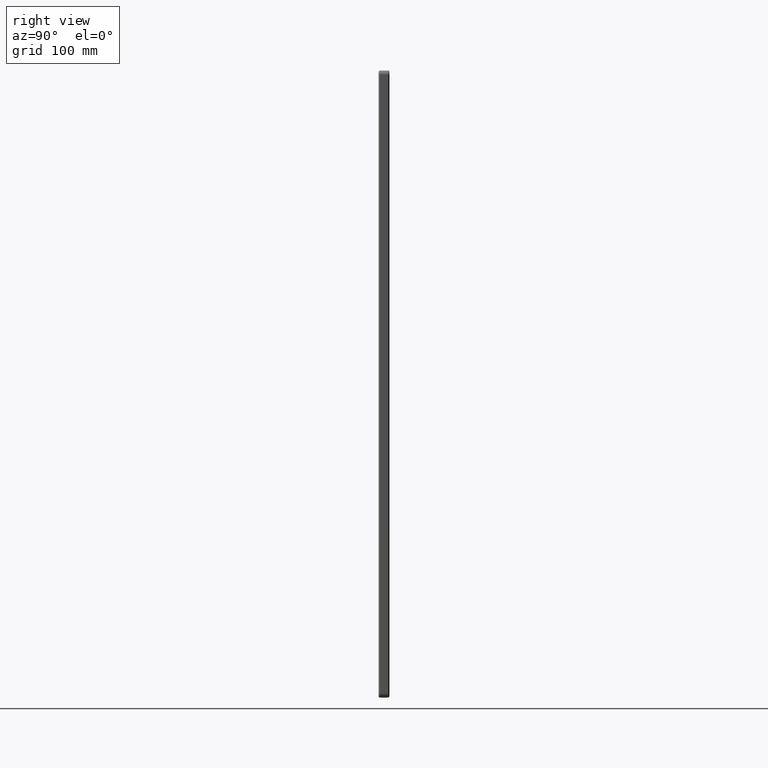
[diagram: clean part render]
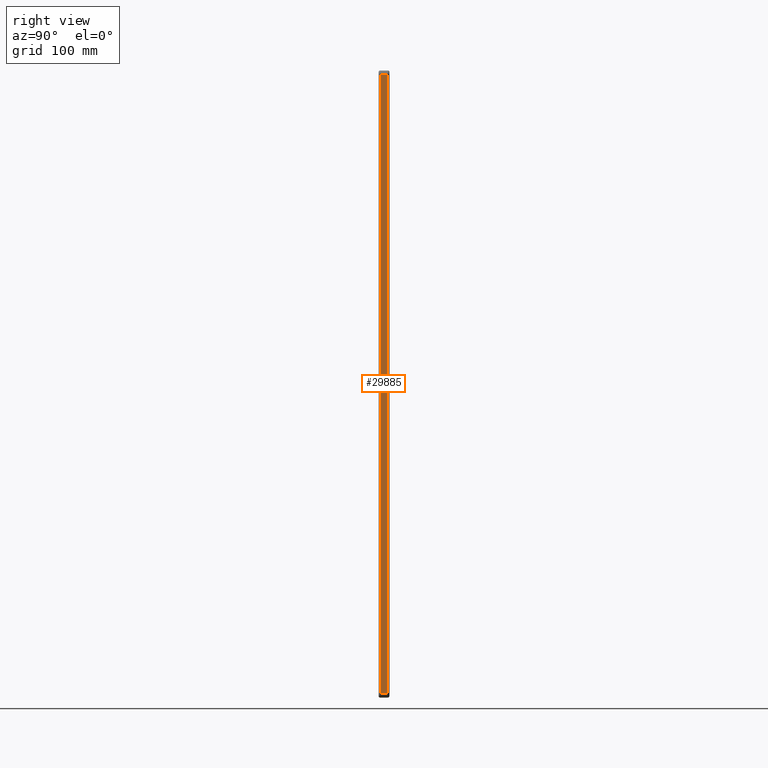
[diagram: same view with one face highlighted and labeled with its STEP entity id]
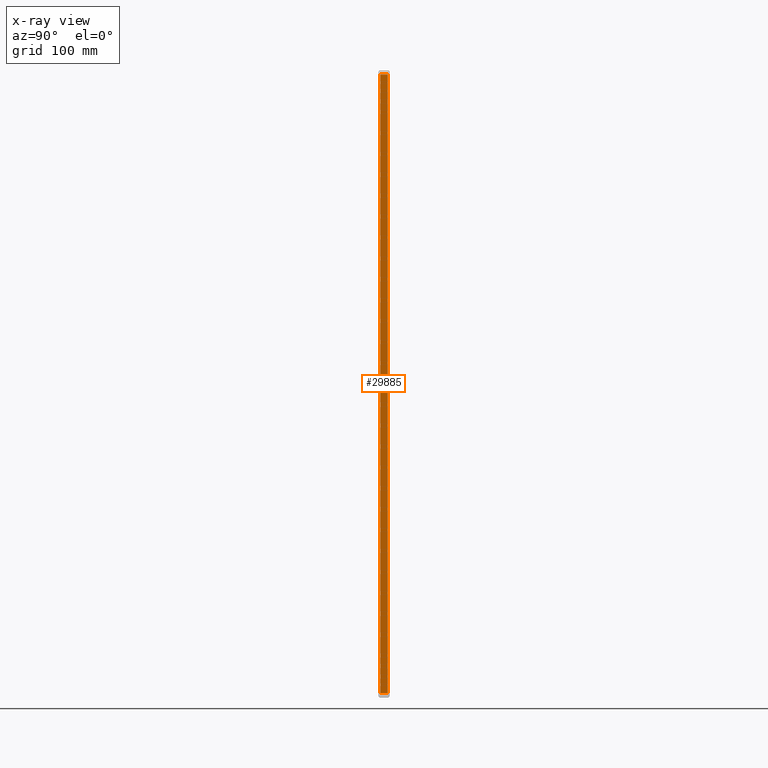
[diagram: x-ray of the same camera — body ghosted, the highlighted face saturated]
A machine part, right view. The second image highlights one B-rep face of the part: STEP entity #29885.
The next image is the same camera in x-ray: the body ghosted, the highlighted face saturated — about 0% of this face is hidden behind the body in this view.
In plain terms, the highlighted planar face has unit normal (-1, 0, 0).
Its self-contained STEP definition (entity closure, byte-faithful):
#256 = ORIENTED_EDGE ( 'NONE', *, *, #30000, .T. ) ;
#1446 = CARTESIAN_POINT ( 'NONE',  ( 224.9999999999998579, 13.00000000000000000, -370.0000000000000000 ) ) ;
#1575 = EDGE_LOOP ( 'NONE', ( #6149, #6452, #5020, #256 ) ) ;
#1630 = FACE_OUTER_BOUND ( 'NONE', #1575, .T. ) ;
#2059 = CARTESIAN_POINT ( 'NONE',  ( 224.9999999999998579, 2.000000000000000000, -370.0000000000000000 ) ) ;
#2820 = LINE ( 'NONE', #23819, #31941 ) ;
#5020 = ORIENTED_EDGE ( 'NONE', *, *, #28490, .F. ) ;
#5902 = EDGE_CURVE ( 'NONE', #22247, #10752, #10914, .T. ) ;
#6066 = EDGE_CURVE ( 'NONE', #19270, #22247, #2820, .T. ) ;
#6149 = ORIENTED_EDGE ( 'NONE', *, *, #6066, .T. ) ;
#6452 = ORIENTED_EDGE ( 'NONE', *, *, #5902, .T. ) ;
#6476 = DIRECTION ( 'NONE',  ( -0.000000000000000000, -1.000000000000000000, -0.000000000000000000 ) ) ;
#6750 = VECTOR ( 'NONE', #20306, 1000.000000000000000 ) ;
#7779 = DIRECTION ( 'NONE',  ( -1.000000000000000000, 0.000000000000000000, 0.000000000000000000 ) ) ;
#10752 = VERTEX_POINT ( 'NONE', #19100 ) ;
#10914 = LINE ( 'NONE', #2059, #30163 ) ;
#11063 = PLANE ( 'NONE',  #17828 ) ;
#12775 = DIRECTION ( 'NONE',  ( -0.000000000000000000, -1.000000000000000000, -0.000000000000000000 ) ) ;
#15059 = LINE ( 'NONE', #27193, #6750 ) ;
#15149 = VERTEX_POINT ( 'NONE', #15971 ) ;
#15971 = CARTESIAN_POINT ( 'NONE',  ( 224.9999999999999147, 11.00000000000000000, -370.0000000000000000 ) ) ;
#17828 = AXIS2_PLACEMENT_3D ( 'NONE', #1446, #7779, #37481 ) ;
#19100 = CARTESIAN_POINT ( 'NONE',  ( 224.9999999999999147, 2.000000000000003553, -370.0000000000000000 ) ) ;
#19270 = VERTEX_POINT ( 'NONE', #30583 ) ;
#19312 = CARTESIAN_POINT ( 'NONE',  ( 224.9999999999999147, 13.00000000000000000, -370.0000000000000000 ) ) ;
#20306 = DIRECTION ( 'NONE',  ( -0.000000000000000000, -0.000000000000000000, 1.000000000000000000 ) ) ;
#22247 = VERTEX_POINT ( 'NONE', #34485 ) ;
#23819 = CARTESIAN_POINT ( 'NONE',  ( 224.9999999999998579, 13.00000000000000000, 370.0000000000000000 ) ) ;
#27193 = CARTESIAN_POINT ( 'NONE',  ( 224.9999999999998579, 11.00000000000000000, 370.0000000000000000 ) ) ;
#27986 = LINE ( 'NONE', #19312, #36292 ) ;
#28467 = DIRECTION ( 'NONE',  ( 0.000000000000000000, 0.000000000000000000, -1.000000000000000000 ) ) ;
#28490 = EDGE_CURVE ( 'NONE', #15149, #10752, #27986, .T. ) ;
#29885 = ADVANCED_FACE ( 'NONE', ( #1630 ), #11063, .F. ) ;
#30000 = EDGE_CURVE ( 'NONE', #15149, #19270, #15059, .T. ) ;
#30163 = VECTOR ( 'NONE', #28467, 1000.000000000000000 ) ;
#30583 = CARTESIAN_POINT ( 'NONE',  ( 224.9999999999998579, 11.00000000000000000, 370.0000000000000000 ) ) ;
#31941 = VECTOR ( 'NONE', #6476, 1000.000000000000000 ) ;
#34485 = CARTESIAN_POINT ( 'NONE',  ( 224.9999999999998579, 2.000000000000001776, 370.0000000000000000 ) ) ;
#36292 = VECTOR ( 'NONE', #12775, 1000.000000000000000 ) ;
#37481 = DIRECTION ( 'NONE',  ( 0.000000000000000000, 0.000000000000000000, 1.000000000000000000 ) ) ;